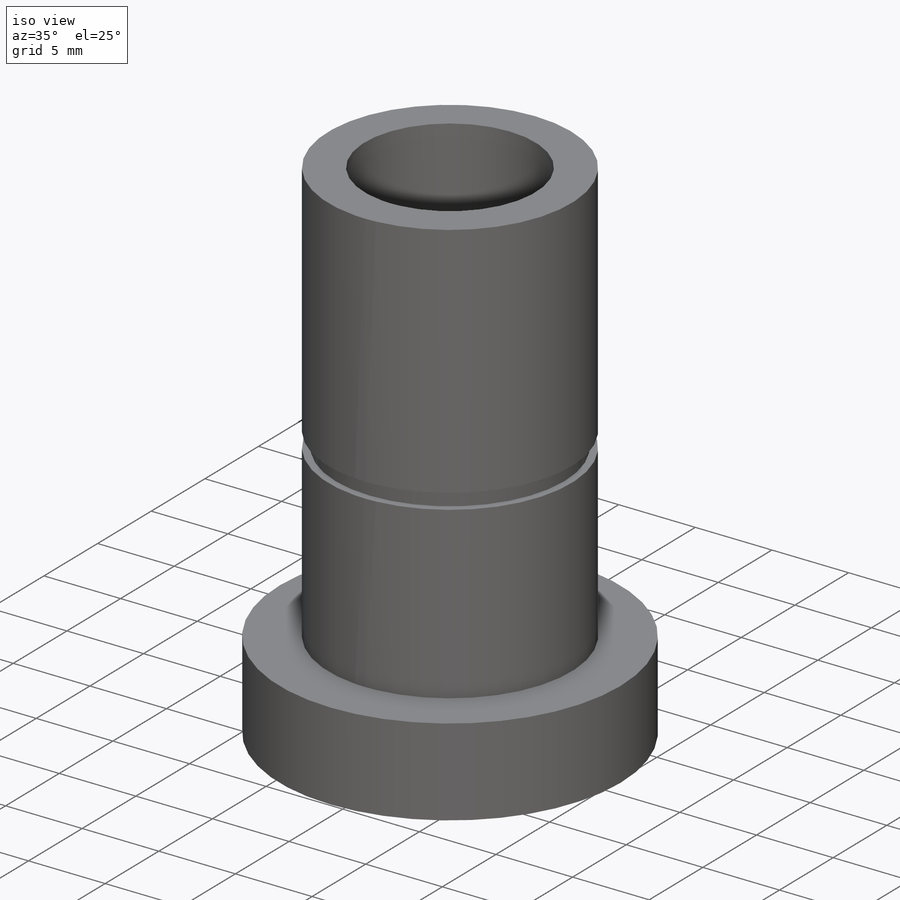
[diagram: iso view]
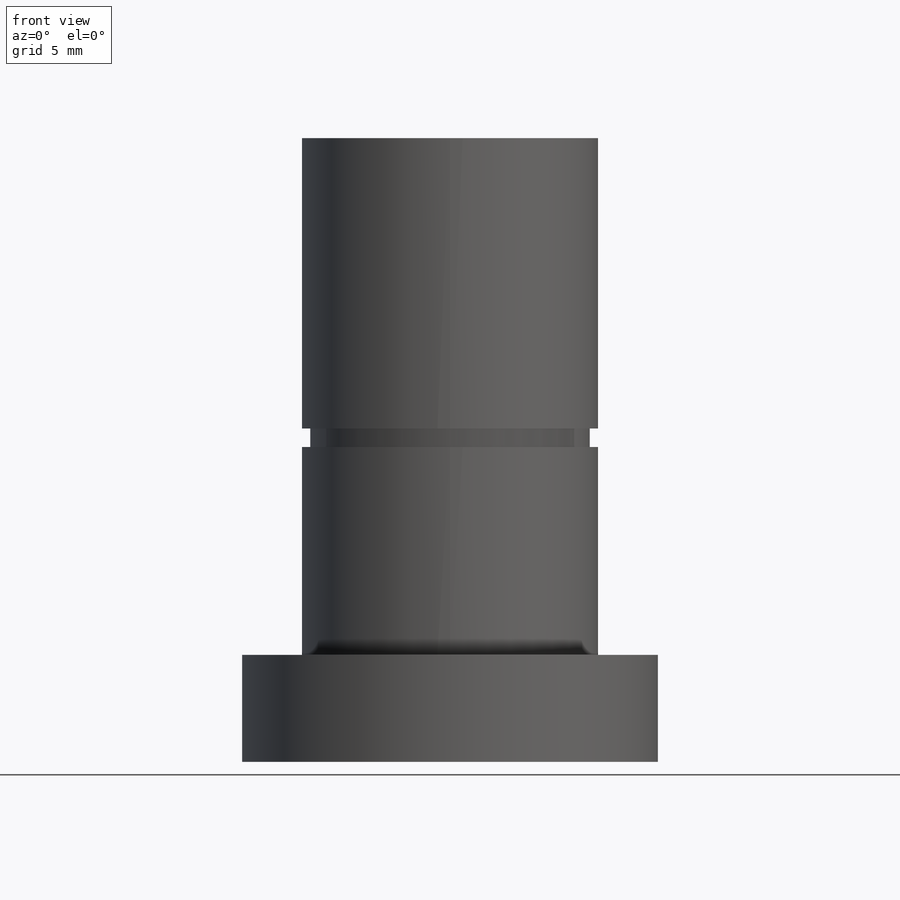
[diagram: front view]
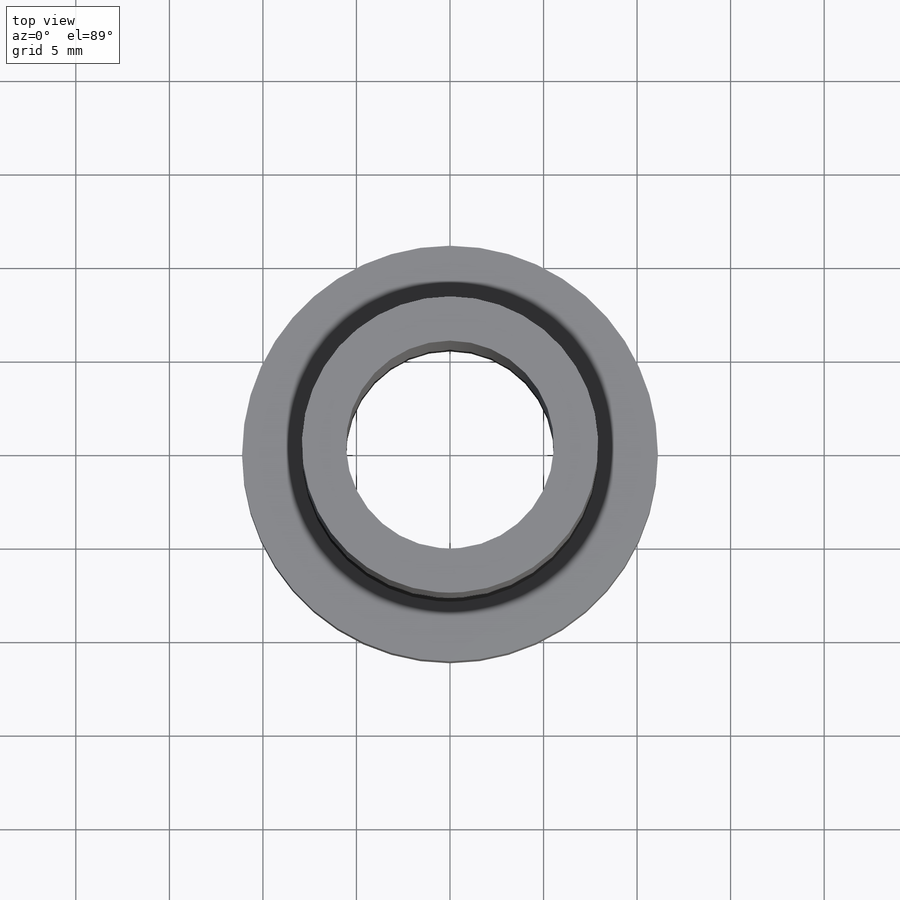
[diagram: top view]
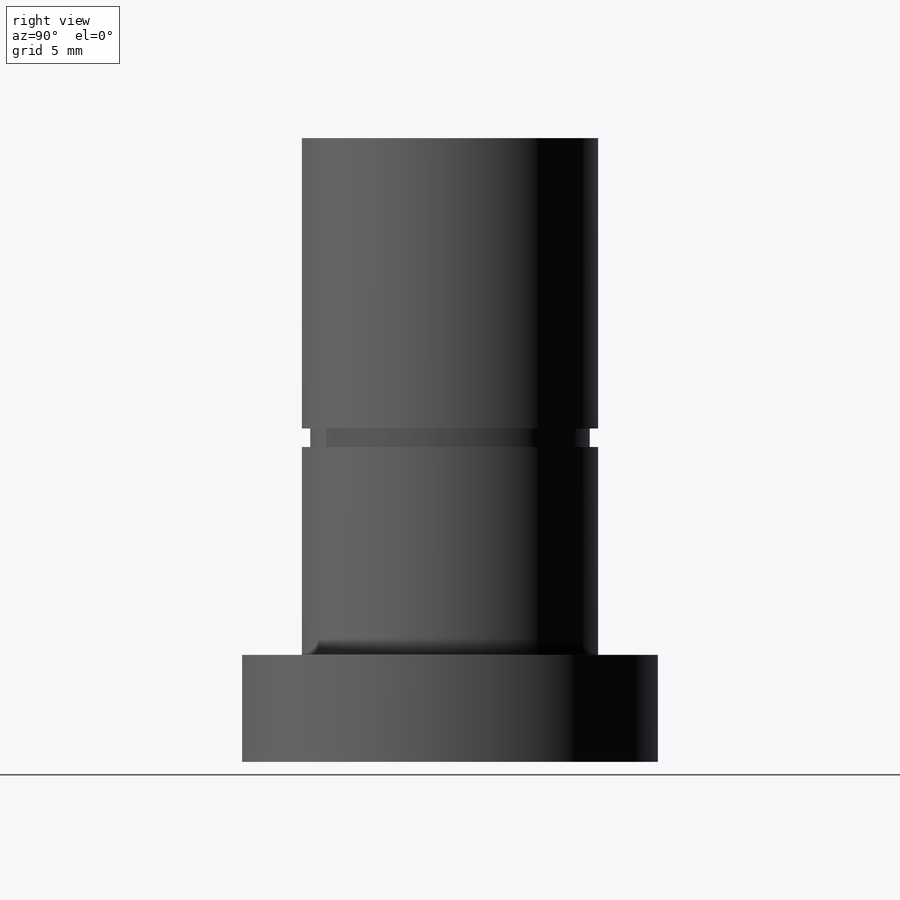
[diagram: right view]
SOLIDWORKS PART (.sldprt)
format: sldprt  version: not decoded by parser v0  size: 173,056 bytes
history: native  units: mm
features: sketch x4, thread x4, extrude x3, material x1, plane x1, cut_extrude x1 (+11 scaffold rows collapsed)
feature tree (25):
  scaffold x11  (default folders/planes/origin — collapsed)
  material  "Material <not specified>"
  sketch  "Sketch1"  dims[D1=22.225mm D2=11.1125mm]
  extrude  "Boss-Extrude1"  Depth=5.715mm
  sketch  "Sketch2"  dims[D1=15.8369mm]
  extrude  "Boss-Extrude2"  Depth=27.6225mm
  plane  "Plane1"  Offset=11.1125mm
  sketch  "Sketch3"  dims[D1=14.9352mm]
  cut_extrude  "Cut-Extrude1"  Depth=0.9906mm
  sketch  "Sketch4"  dims[D1=2.8702mm D4=31.75mm D2=13.462mm D3=4.0]
  extrude  "Boss-Extrude3"  [1 undecoded]
  thread  "Cosmetic Thread1"  Diameter=3.5052mm  [1 undecoded]
  thread  "Cosmetic Thread2"  Diameter=3.5052mm  [1 undecoded]
  thread  "Cosmetic Thread3"  Diameter=3.5052mm  [1 undecoded]
  thread  "Cosmetic Thread4"  Diameter=3.5052mm  [1 undecoded]
decode coverage: 11 of 12 modeling features carry decoded parameters
note: 5 parameter values undecoded
note: suppression state not decoded; provenance and decode notes live in map.json
